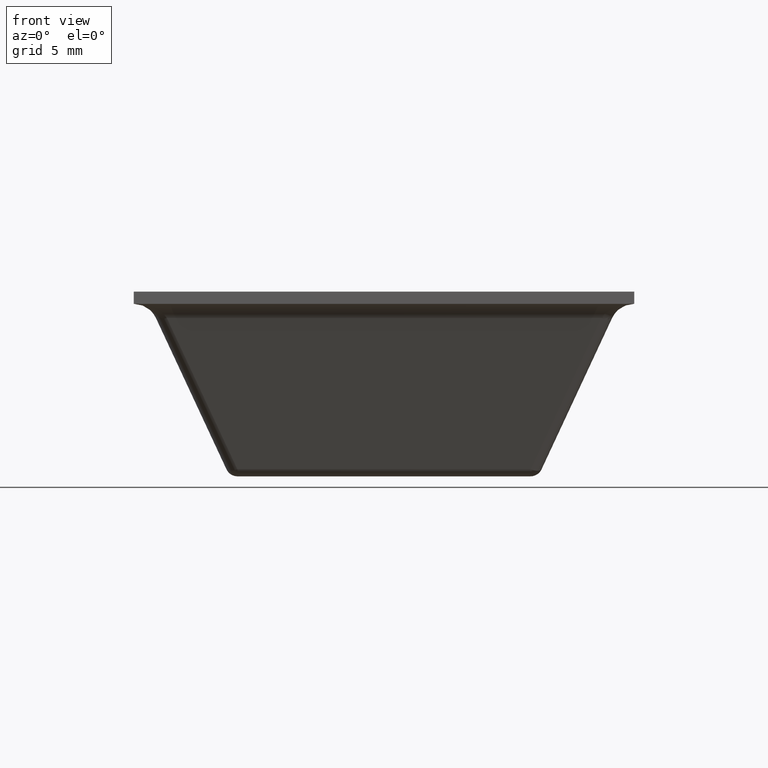
[diagram: clean part render]
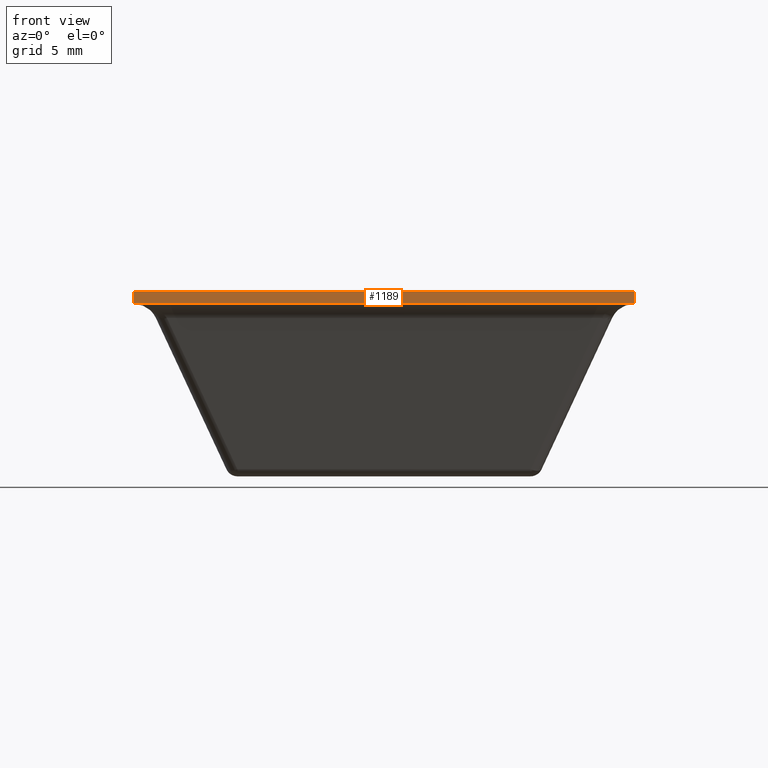
[diagram: same view with one face highlighted and labeled with its STEP entity id]
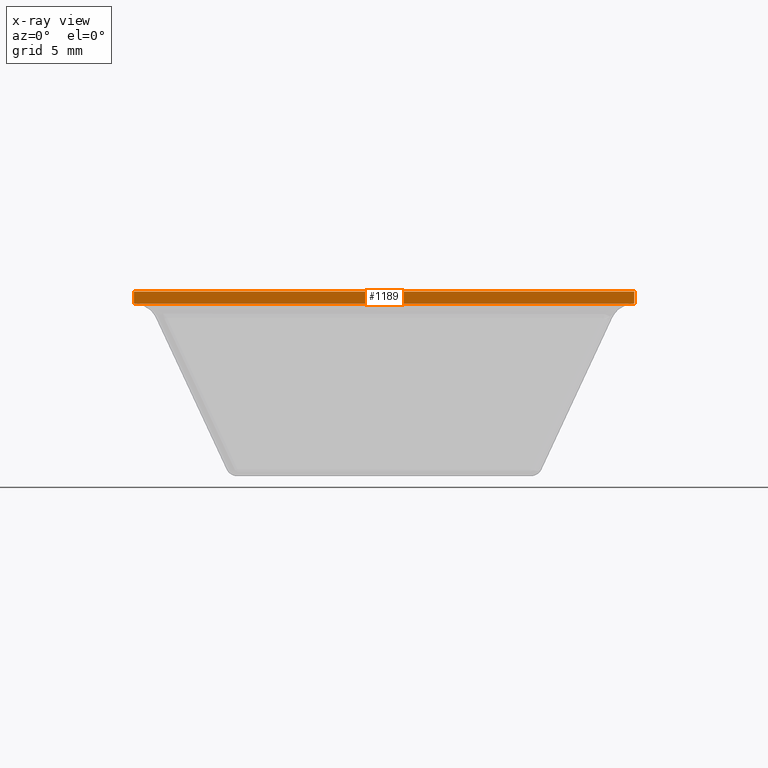
[diagram: x-ray of the same camera — body ghosted, the highlighted face saturated]
A machine part, front view. The second image highlights one B-rep face of the part: STEP entity #1189.
The next image is the same camera in x-ray: the body ghosted, the highlighted face saturated — about 0% of this face is hidden behind the body in this view.
In plain terms, the highlighted face is a freeform B-spline surface patch.
Its self-contained STEP definition (entity closure, byte-faithful):
#1043=CARTESIAN_POINT('',(10.300000000000001,-10.300000000000001,7.100000000000001));
#1044=VERTEX_POINT('',#1043);
#1050=CARTESIAN_POINT('',(-10.300000000000001,-10.300000000000001,7.100000000000001));
#1051=VERTEX_POINT('',#1050);
#1052=CARTESIAN_POINT('',(-10.300000000000001,-10.300000000000001,7.100000000000001));
#1053=CARTESIAN_POINT('',(10.300000000000001,-10.300000000000001,7.100000000000001));
#1054=QUASI_UNIFORM_CURVE('',1,(#1052,#1053),.UNSPECIFIED.,.F.,.U.);
#1055=EDGE_CURVE('',#1051,#1044,#1054,.T.);
#1109=CARTESIAN_POINT('',(10.300000000000001,-10.300000000000001,7.600000000000000));
#1110=VERTEX_POINT('',#1109);
#1123=CARTESIAN_POINT('',(-10.300000000000001,-10.300000000000001,7.600000000000000));
#1124=VERTEX_POINT('',#1123);
#1130=CARTESIAN_POINT('',(10.300000000000001,-10.300000000000001,7.600000000000000));
#1131=CARTESIAN_POINT('',(-10.300000000000001,-10.300000000000001,7.600000000000000));
#1132=QUASI_UNIFORM_CURVE('',1,(#1130,#1131),.UNSPECIFIED.,.F.,.U.);
#1133=EDGE_CURVE('',#1110,#1124,#1132,.T.);
#1164=CARTESIAN_POINT('',(-10.300000000000001,-10.300000000000001,7.600000000000000));
#1165=CARTESIAN_POINT('',(-10.300000000000001,-10.300000000000001,7.100000000000001));
#1166=QUASI_UNIFORM_CURVE('',1,(#1164,#1165),.UNSPECIFIED.,.F.,.U.);
#1167=EDGE_CURVE('',#1124,#1051,#1166,.T.);
#1174=CARTESIAN_POINT('',(-11.328970153451269,-10.300000000000001,7.624974904037117));
#1175=CARTESIAN_POINT('',(-11.328970153451269,-10.300000000000001,7.075024917148948));
#1176=CARTESIAN_POINT('',(11.328970521807969,-10.300000000000001,7.624974904037117));
#1177=CARTESIAN_POINT('',(11.328970521807969,-10.300000000000001,7.075024917148948));
#1178=B_SPLINE_SURFACE_WITH_KNOTS('',1,1,((#1174,#1176),(#1175,#1177)),.UNSPECIFIED.,.F.,.F.,.U.,(2,2),(2,2),(0.041708493271470,0.958291804751754),(0.0,22.657940675259240),.UNSPECIFIED.);
#1179=ORIENTED_EDGE('',*,*,#1055,.T.);
#1180=CARTESIAN_POINT('',(10.300000000000001,-10.300000000000001,7.600000000000000));
#1181=CARTESIAN_POINT('',(10.300000000000001,-10.300000000000001,7.100000000000001));
#1182=QUASI_UNIFORM_CURVE('',1,(#1180,#1181),.UNSPECIFIED.,.F.,.U.);
#1183=EDGE_CURVE('',#1110,#1044,#1182,.T.);
#1184=ORIENTED_EDGE('',*,*,#1183,.F.);
#1185=ORIENTED_EDGE('',*,*,#1133,.T.);
#1186=ORIENTED_EDGE('',*,*,#1167,.T.);
#1187=EDGE_LOOP('',(#1179,#1184,#1185,#1186));
#1188=FACE_OUTER_BOUND('',#1187,.T.);
#1189=ADVANCED_FACE('',(#1188),#1178,.T.);